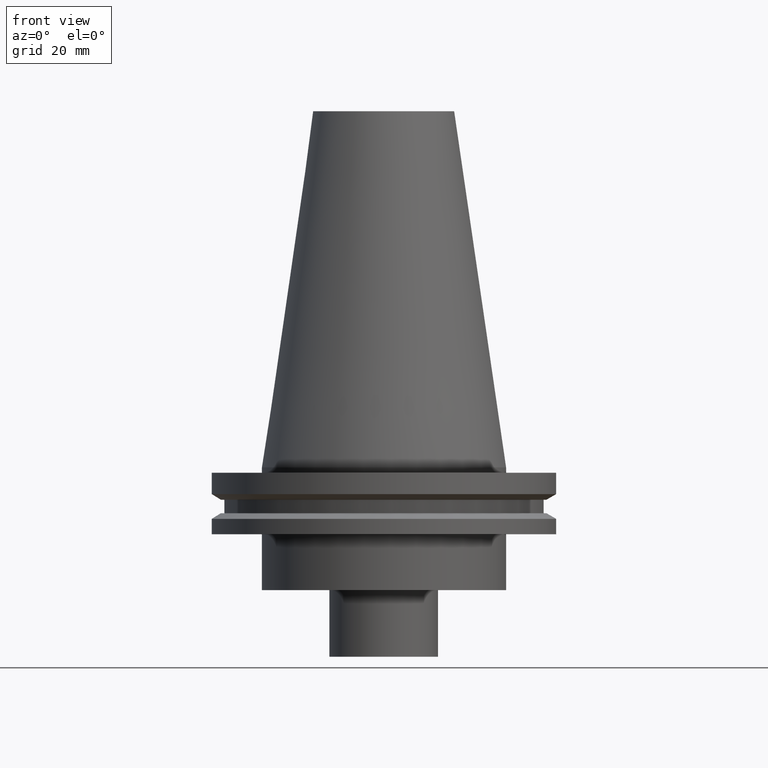
[diagram: clean part render]
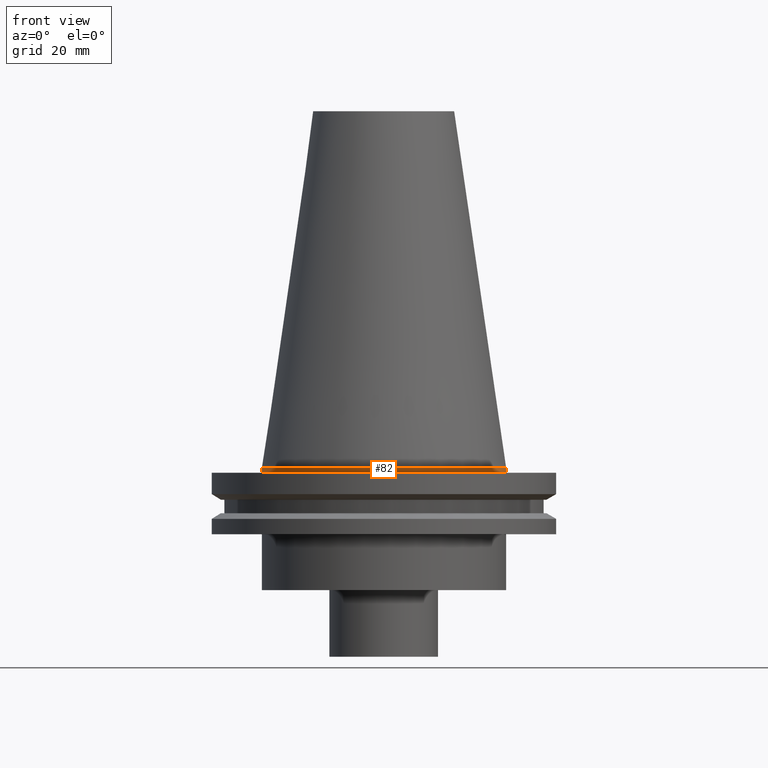
[diagram: same view with one face highlighted and labeled with its STEP entity id]
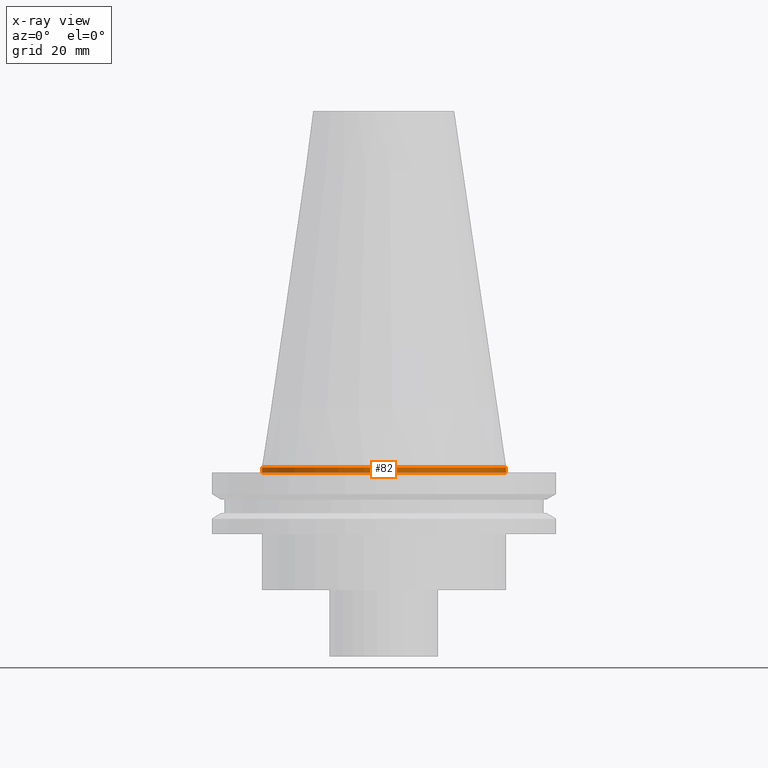
[diagram: x-ray of the same camera — body ghosted, the highlighted face saturated]
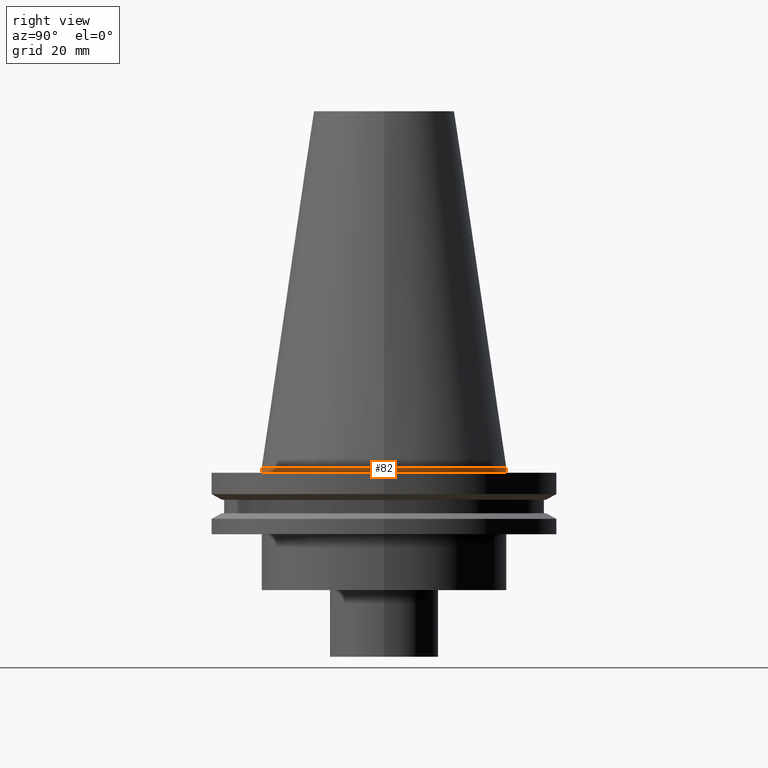
[diagram: same view with one face highlighted and labeled with its STEP entity id]
A machine part, front view. The second image highlights one B-rep face of the part: STEP entity #82.
The next image is the same camera in x-ray: the body ghosted, the highlighted face saturated — about 0% of this face is hidden behind the body in this view.
A second angle (right view) of the same face is appended — the face is thin or edge-on in the first view.
In plain terms, the highlighted cylindrical surface (bore or boss wall) has radius 34.925 mm, axis along (-0, -0, 1).
Its self-contained STEP definition (entity closure, byte-faithful):
#9 = AXIS2_PLACEMENT_3D ( 'NONE', #193, #155, #273 ) ;
#33 = DIRECTION ( 'NONE',  ( 1.000000000000000000, 0.000000000000000000, 0.000000000000000000 ) ) ;
#34 = AXIS2_PLACEMENT_3D ( 'NONE', #157, #65, #33 ) ;
#62 = DIRECTION ( 'NONE',  ( -0.000000000000000000, -0.000000000000000000, 1.000000000000000000 ) ) ;
#65 = DIRECTION ( 'NONE',  ( -0.000000000000000000, -0.000000000000000000, 1.000000000000000000 ) ) ;
#82 = ADVANCED_FACE ( 'NONE', ( #248, #131 ), #165, .T. ) ;
#83 = CARTESIAN_POINT ( 'NONE',  ( 34.92499999999999005, 0.000000000000000000, 0.000000000000000000 ) ) ;
#116 = EDGE_LOOP ( 'NONE', ( #237 ) ) ;
#126 = CARTESIAN_POINT ( 'NONE',  ( 0.000000000000000000, 0.000000000000000000, 0.000000000000000000 ) ) ;
#131 = FACE_OUTER_BOUND ( 'NONE', #329, .T. ) ;
#155 = DIRECTION ( 'NONE',  ( -0.000000000000000000, -0.000000000000000000, 1.000000000000000000 ) ) ;
#157 = CARTESIAN_POINT ( 'NONE',  ( 0.000000000000000000, 0.000000000000000000, -1.499999999999987566 ) ) ;
#158 = EDGE_CURVE ( 'NONE', #183, #183, #340, .T. ) ;
#165 = CYLINDRICAL_SURFACE ( 'NONE', #9, 34.92499999999999005 ) ;
#183 = VERTEX_POINT ( 'NONE', #83 ) ;
#185 = CIRCLE ( 'NONE', #34, 34.92499999999999005 ) ;
#193 = CARTESIAN_POINT ( 'NONE',  ( 0.000000000000000000, 0.000000000000000000, 101.5999999999999943 ) ) ;
#194 = EDGE_CURVE ( 'NONE', #299, #299, #185, .T. ) ;
#216 = ORIENTED_EDGE ( 'NONE', *, *, #194, .T. ) ;
#232 = AXIS2_PLACEMENT_3D ( 'NONE', #126, #62, #337 ) ;
#237 = ORIENTED_EDGE ( 'NONE', *, *, #158, .F. ) ;
#248 = FACE_OUTER_BOUND ( 'NONE', #116, .T. ) ;
#273 = DIRECTION ( 'NONE',  ( 1.000000000000000000, 0.000000000000000000, 0.000000000000000000 ) ) ;
#299 = VERTEX_POINT ( 'NONE', #393 ) ;
#329 = EDGE_LOOP ( 'NONE', ( #216 ) ) ;
#337 = DIRECTION ( 'NONE',  ( 1.000000000000000000, 0.000000000000000000, 0.000000000000000000 ) ) ;
#340 = CIRCLE ( 'NONE', #232, 34.92499999999999005 ) ;
#393 = CARTESIAN_POINT ( 'NONE',  ( 34.92499999999999005, 0.000000000000000000, -1.499999999999987566 ) ) ;